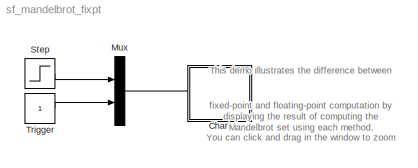
MODEL sf_mandelbrot_fixpt
KIND model
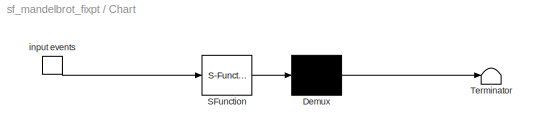
BLOCK [SubSystem] Chart
  MaskDescription = Stateflow diagram
  MaskDisplay = plot(sf('Private','sfblk','xIcon'),sf('Private','sfblk','yIcon'));text(0.5,0,sf('Private', 'sfblk', 'tIcon'),'HorizontalAl','Center','VerticalAl','Bottom');
  MaskIconFrame = off
  MaskIconOpaque = off
  MaskIconRotate = none
  MaskIconUnits = autoscale
  MaskSelfModifiable = on
  MaskType = Stateflow
  MinAlgLoopOccurrences = off
  Ports = [0, 0, 0, 1]
  PropExecContextAcrossSSBoundary = on
  RTWSystemCode = Auto
  TreatAsAtomicUnit = on
BLOCK [Demux] Chart/ Demux 
  Outputs = 1
  Ports = [1, 1]
BLOCK [S-Function] Chart/ SFunction 
  FunctionName = sf_sfun
  PortCounts = [1 1]
  Ports = [1, 1]
  Tag = Stateflow S-Function sf_mandelbrot_fixpt 1
BLOCK [Terminator] Chart/ Terminator 
BLOCK [TriggerPort] Chart/ input events 
  Ports = [0, 1]
  ShowOutputPort = on
  TriggerType = either
  ZeroCross = off
BLOCK [Mux] Mux
  DisplayOption = bar
  Inputs = 2
  Ports = [2, 1]
BLOCK [Step] Step
  SampleTime = 0
  Time = 0.1
  ZeroCross = off
BLOCK [Constant] Trigger
ANNOTATION (root): This demo illustrates the difference between\nfixed-point and floating-point computation by \ndisplaying the result of computing the \nMandelbrot set using each method.\n\nYou can click and drag in the window to zoom \nin on a portion of the image once a redraw is \ncomplete. The simulation runs until stopped.
LINE Chart/ Demux :1 -> Chart/ Terminator :1
LINE Chart/ SFunction :1 -> Chart/ Demux :1
LINE Chart/ input events :1 -> Chart/ SFunction :1
LINE Mux:1 -> Chart:trigger
LINE Step:1 -> Mux:1
LINE Trigger:1 -> Mux:2
CHART Chart states=3 transitions=24
  STATE_LABEL 'i = mandel_fix(a0,b0)'
  STATE_LABEL 'Wait\\nentry:ml.sf_mandel_gui(\\"enter_wait\\");'
  STATE_LABEL 'i = mandel_double(a0,b0)'
